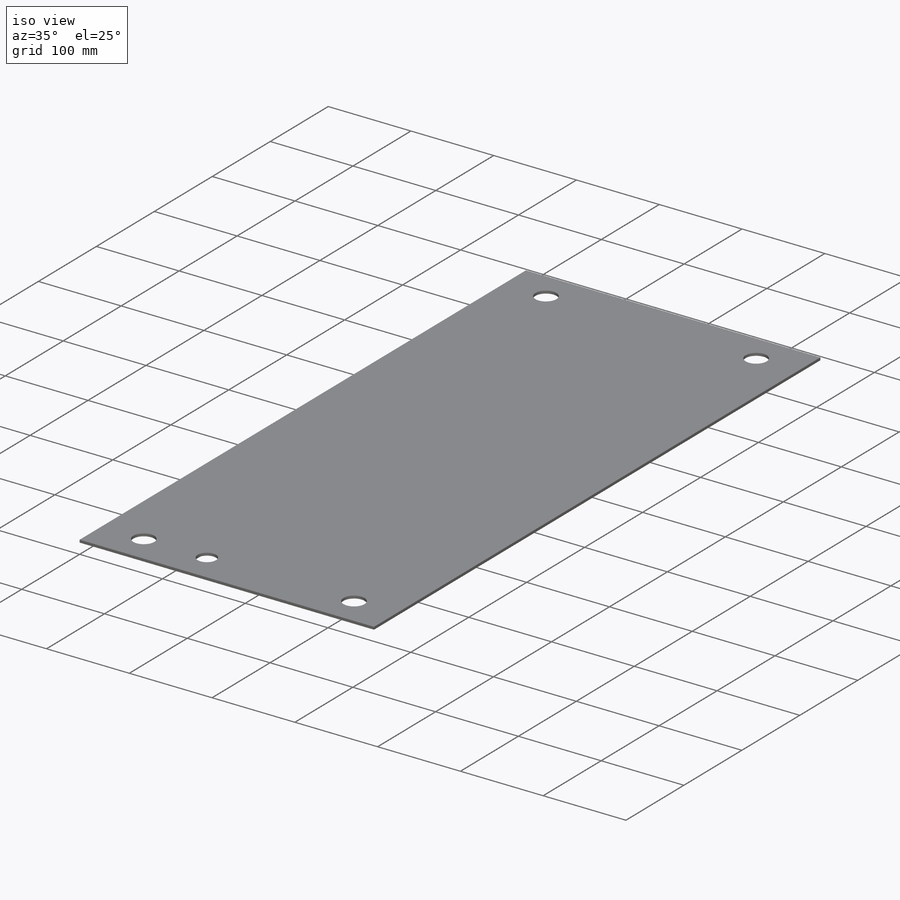
[diagram: iso view]
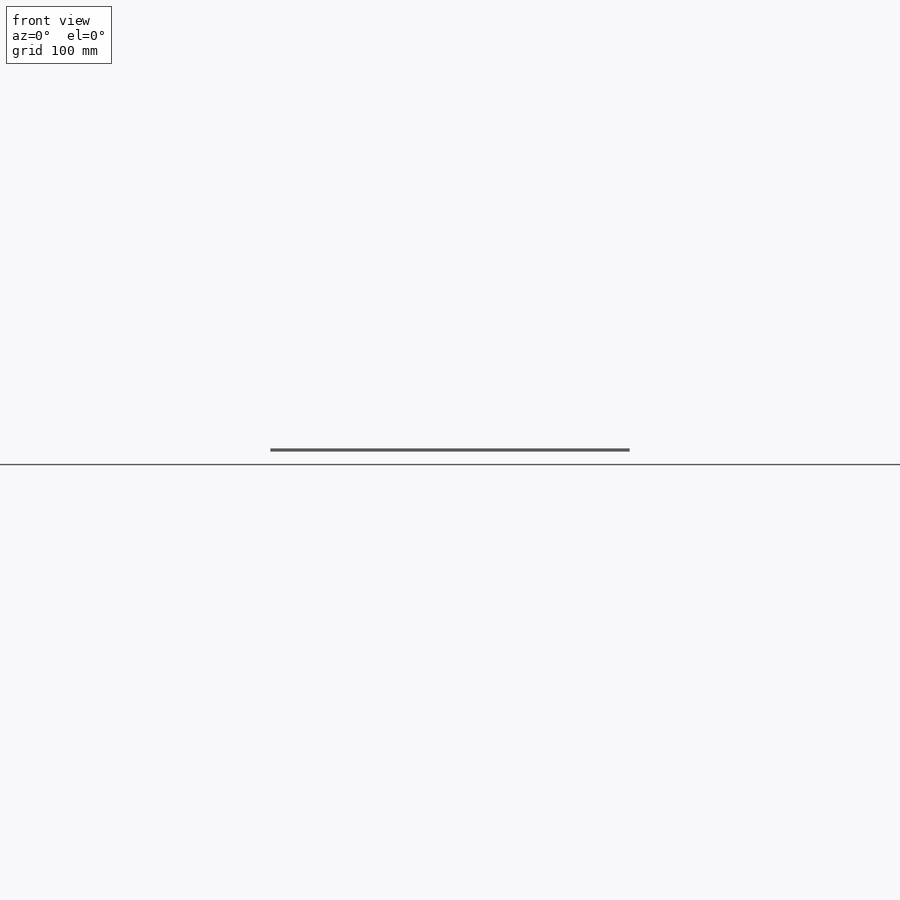
[diagram: front view]
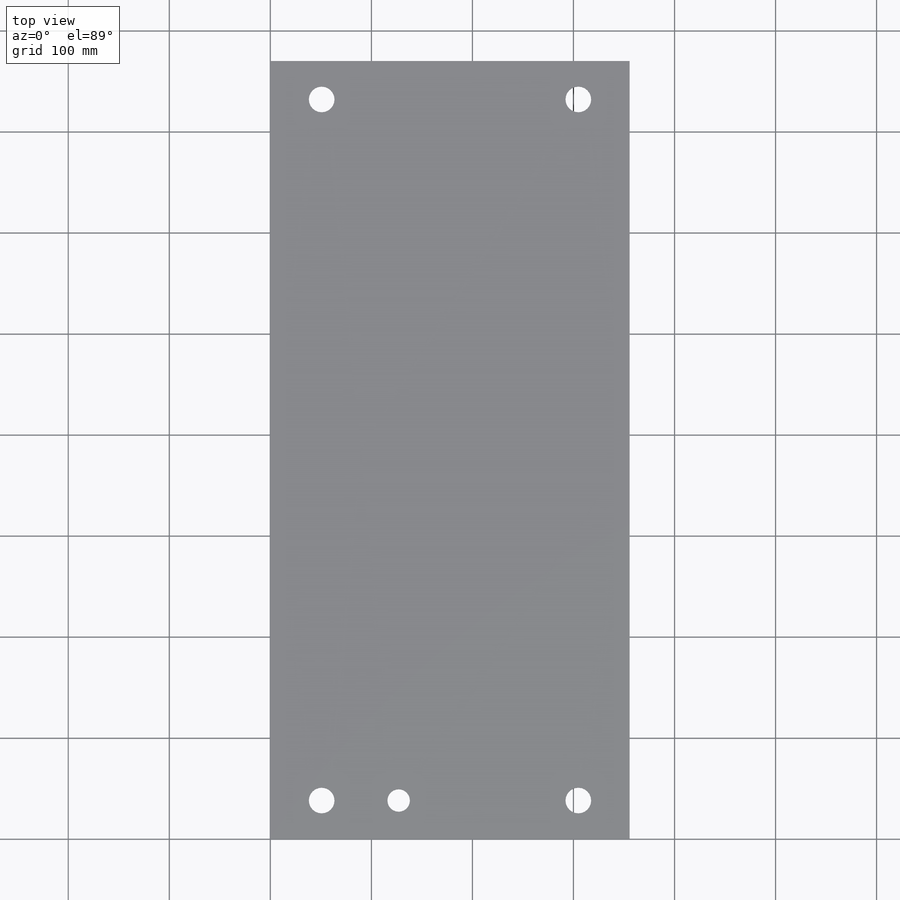
[diagram: top view]
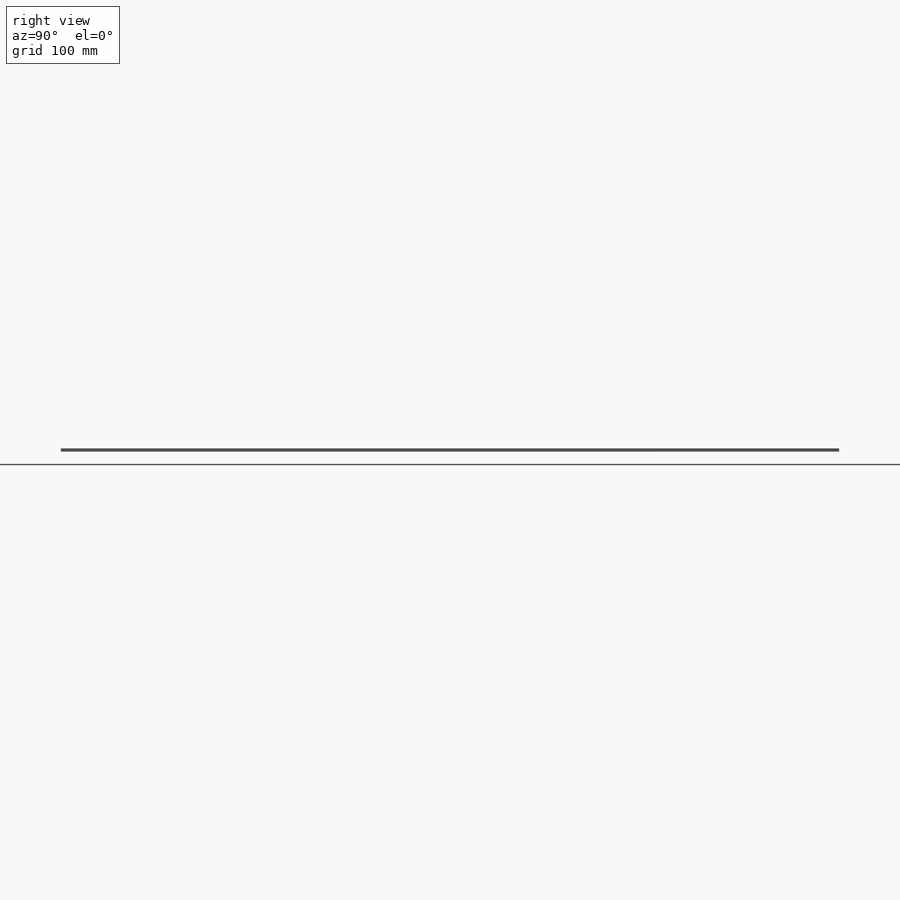
[diagram: right view]
SOLIDWORKS PART (.sldprt)
format: sldprt  version: not decoded by parser v0  size: 316,928 bytes
history: native  units: mm
features: sketch x4, material x1, extrude x1, hole x1, cut_extrude x1 (+11 scaffold rows collapsed)
feature tree (19):
  scaffold x11  (default folders/planes/origin — collapsed)
  material  "Material <not specified>"
  sketch  "Sketch1"  dims[D1=770.128mm D2=355.6mm]
  extrude  "Boss-Extrude1"  Depth=3.175mm
  hole  "1 (1) Diameter Hole1"  Diameter=25.4mm Depth=20.574mm
  sketch  "Sketch3"  dims[D1=38.1mm D2=50.8mm]
  sketch  "Sketch2"  dims[hole-wizard template sketch: 47 standard entries collapsed; hole parameters kept: c15.Hole Depth=20.574mm c15.D3=~14.816244mm c15.Drill Angle=118.0deg]
  sketch  "Sketch4"  dims[c1.D1=22.225mm c1.D2=22.225mm c1.D3=22.225mm c2.D1=22.225mm c2.D2=38.1mm c2.D3=76.2mm c3.D1=38.1mm c3.D2=76.2mm]
  cut_extrude  "Cut-Extrude1"  [1 undecoded]
decode coverage: 6 of 7 modeling features carry decoded parameters
note: ~ marks probable driven/reference dimensions
note: 1 parameter value undecoded
note: suppression state not decoded; provenance and decode notes live in map.json
